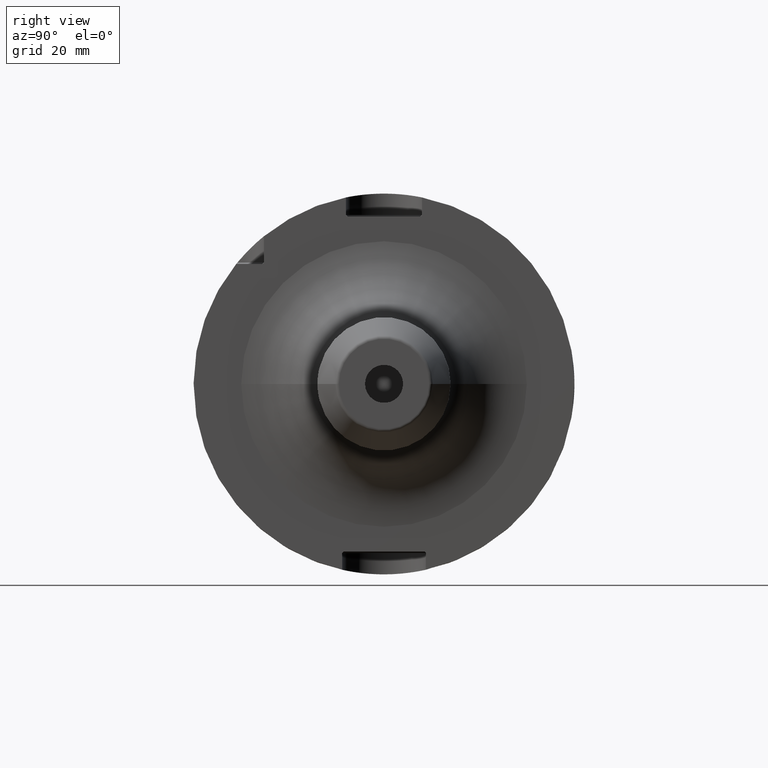
[diagram: clean part render]
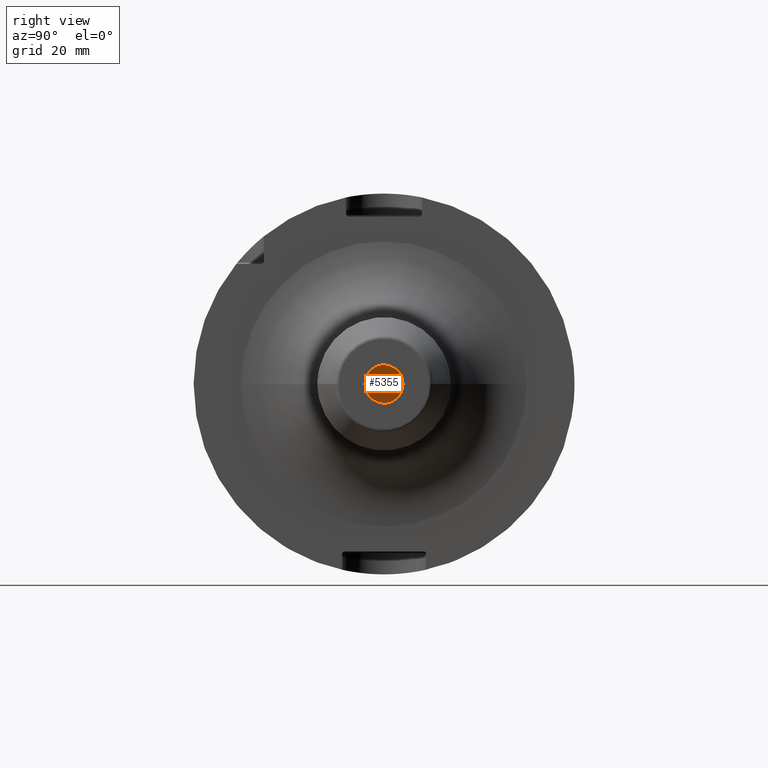
[diagram: same view with one face highlighted and labeled with its STEP entity id]
A machine part, right view. The second image highlights one B-rep face of the part: STEP entity #5355.
In plain terms, the highlighted planar face has unit normal (1, 0, 0).
Its self-contained STEP definition (entity closure, byte-faithful):
#2048=CARTESIAN_POINT('',(4.5E1,0.E0,0.E0));
#2049=DIRECTION('',(-1.E0,0.E0,0.E0));
#2050=DIRECTION('',(0.E0,1.E0,0.E0));
#2051=AXIS2_PLACEMENT_3D('',#2048,#2049,#2050);
#2053=CARTESIAN_POINT('',(4.5E1,0.E0,0.E0));
#2054=DIRECTION('',(1.E0,0.E0,0.E0));
#2055=DIRECTION('',(0.E0,1.E0,0.E0));
#2056=AXIS2_PLACEMENT_3D('',#2053,#2054,#2055);
#3279=CARTESIAN_POINT('',(4.5E1,5.E0,0.E0));
#3280=CARTESIAN_POINT('',(4.5E1,-5.E0,0.E0));
#3281=VERTEX_POINT('',#3279);
#3282=VERTEX_POINT('',#3280);
#5346=CARTESIAN_POINT('',(4.5E1,0.E0,0.E0));
#5347=DIRECTION('',(1.E0,0.E0,0.E0));
#5348=DIRECTION('',(0.E0,-1.E0,0.E0));
#5349=AXIS2_PLACEMENT_3D('',#5346,#5347,#5348);
#5350=PLANE('',#5349);
#5351=ORIENTED_EDGE('',*,*,#5338,.T.);
#5352=ORIENTED_EDGE('',*,*,#5324,.F.);
#5353=EDGE_LOOP('',(#5351,#5352));
#5354=FACE_OUTER_BOUND('',#5353,.F.);
#5355=ADVANCED_FACE('',(#5354),#5350,.T.);
#2052=CIRCLE('',#2051,5.E0);
#2057=CIRCLE('',#2056,5.E0);
#5324=EDGE_CURVE('',#3281,#3282,#2057,.T.);
#5338=EDGE_CURVE('',#3281,#3282,#2052,.T.);